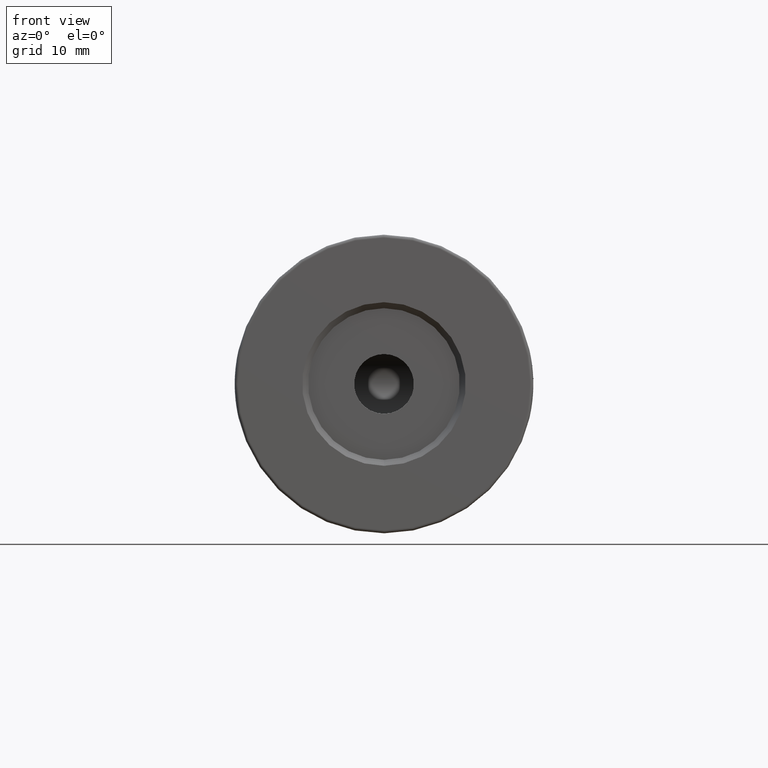
[diagram: clean part render]
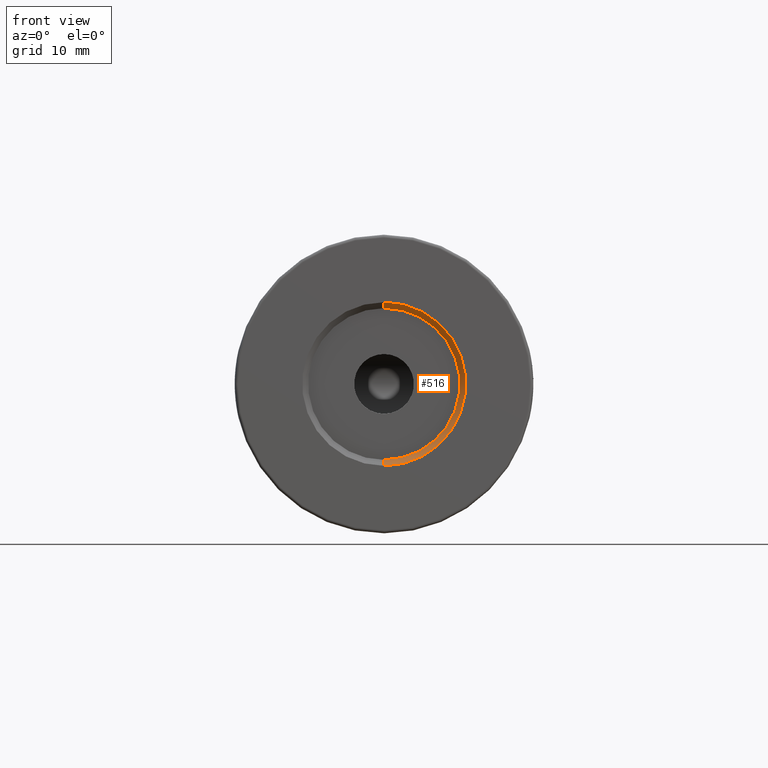
[diagram: same view with one face highlighted and labeled with its STEP entity id]
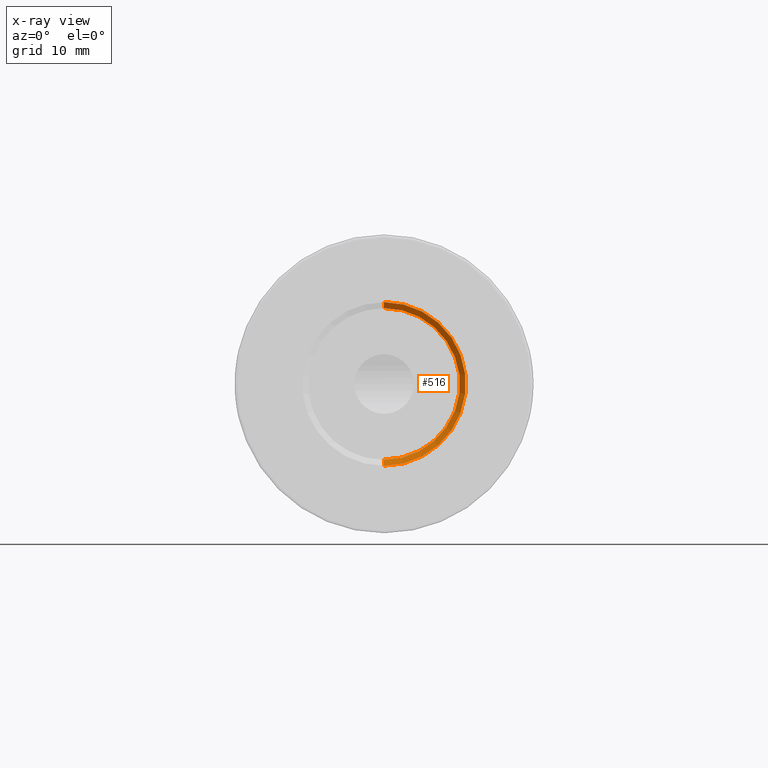
[diagram: x-ray of the same camera — body ghosted, the highlighted face saturated]
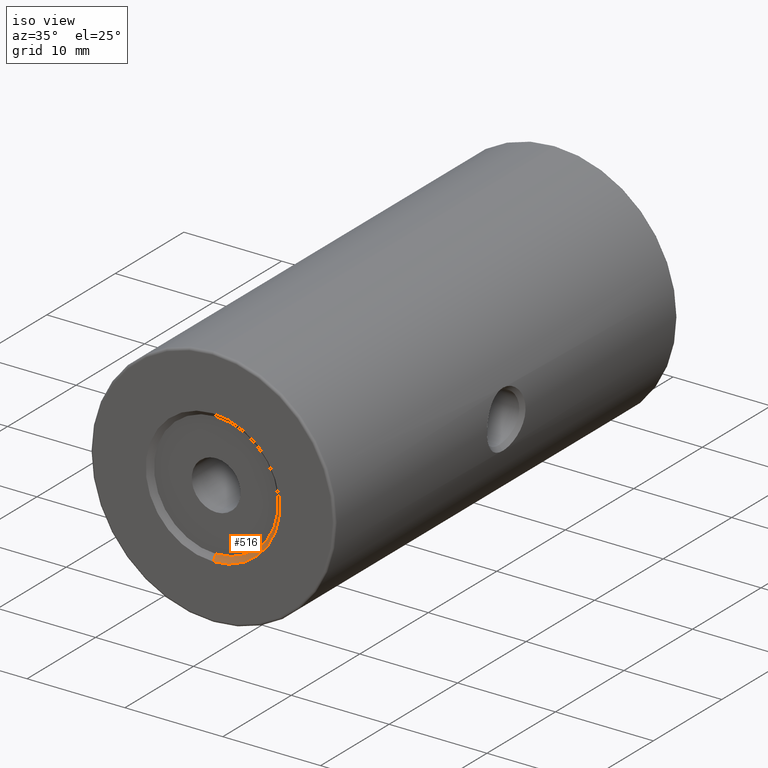
[diagram: same view with one face highlighted and labeled with its STEP entity id]
A machine part, front view. The second image highlights one B-rep face of the part: STEP entity #516.
The next image is the same camera in x-ray: the body ghosted, the highlighted face saturated — about 0% of this face is hidden behind the body in this view.
A second angle (iso view) of the same face is appended — the face is thin or edge-on in the first view.
In plain terms, the highlighted conical surface has half-angle 45 deg.
Its self-contained STEP definition (entity closure, byte-faithful):
#348 = DIRECTION ( 'NONE',  ( 8.659560562354950115E-17, -0.7071067811865463515, 0.7071067811865487940 ) ) ;
#401 = DIRECTION ( 'NONE',  ( 0.0000000000000000000, 0.0000000000000000000, 1.000000000000000000 ) ) ;
#417 = CARTESIAN_POINT ( 'NONE',  ( -22.50520183104453409, -23.60174781523060972, 50.00000000000000000 ) ) ;
#432 = AXIS2_PLACEMENT_3D ( 'NONE', #955, #3095, #1512 ) ;
#516 = ADVANCED_FACE ( 'NONE', ( #2134 ), #760, .F. ) ;
#566 = ORIENTED_EDGE ( 'NONE', *, *, #770, .F. ) ;
#599 = AXIS2_PLACEMENT_3D ( 'NONE', #1184, #2808, #2249 ) ;
#641 = DIRECTION ( 'NONE',  ( 0.0000000000000000000, 1.000000000000000000, 0.0000000000000000000 ) ) ;
#760 = CONICAL_SURFACE ( 'NONE', #599, 6.850000000000008527, 0.7853981633974500554 ) ;
#770 = EDGE_CURVE ( 'NONE', #1082, #3329, #1990, .T. ) ;
#955 = CARTESIAN_POINT ( 'NONE',  ( -22.50520183104453409, -23.10174781523060972, 50.00000000000000000 ) ) ;
#978 = VECTOR ( 'NONE', #1387, 1000.000000000000000 ) ;
#989 = CARTESIAN_POINT ( 'NONE',  ( -22.50520183104453409, -23.10174781523060972, 56.35000000000000142 ) ) ;
#1082 = VERTEX_POINT ( 'NONE', #989 ) ;
#1093 = AXIS2_PLACEMENT_3D ( 'NONE', #417, #641, #401 ) ;
#1120 = VERTEX_POINT ( 'NONE', #2292 ) ;
#1184 = CARTESIAN_POINT ( 'NONE',  ( -22.50520183104453409, -23.60174781523060972, 50.00000000000000000 ) ) ;
#1269 = EDGE_CURVE ( 'NONE', #1082, #1120, #1934, .T. ) ;
#1363 = ORIENTED_EDGE ( 'NONE', *, *, #3250, .T. ) ;
#1387 = DIRECTION ( 'NONE',  ( 0.0000000000000000000, -0.7071067811865463515, -0.7071067811865487940 ) ) ;
#1404 = CARTESIAN_POINT ( 'NONE',  ( -22.50520183104453409, -23.60174781523060972, 43.14999999999999147 ) ) ;
#1512 = DIRECTION ( 'NONE',  ( 0.0000000000000000000, 0.0000000000000000000, 1.000000000000000000 ) ) ;
#1591 = EDGE_LOOP ( 'NONE', ( #566, #2474, #1363, #2654 ) ) ;
#1647 = LINE ( 'NONE', #2714, #978 ) ;
#1821 = VECTOR ( 'NONE', #348, 1000.000000000000000 ) ;
#1934 = CIRCLE ( 'NONE', #432, 6.350000000000001421 ) ;
#1990 = LINE ( 'NONE', #2445, #1821 ) ;
#2134 = FACE_OUTER_BOUND ( 'NONE', #1591, .T. ) ;
#2235 = EDGE_CURVE ( 'NONE', #3329, #3256, #2378, .T. ) ;
#2249 = DIRECTION ( 'NONE',  ( 0.0000000000000000000, 0.0000000000000000000, -1.000000000000000000 ) ) ;
#2292 = CARTESIAN_POINT ( 'NONE',  ( -22.50520183104453409, -23.10174781523060972, 43.64999999999999858 ) ) ;
#2378 = CIRCLE ( 'NONE', #1093, 6.850000000000008527 ) ;
#2445 = CARTESIAN_POINT ( 'NONE',  ( -22.50520183104453409, -23.60174781523060972, 56.85000000000000853 ) ) ;
#2474 = ORIENTED_EDGE ( 'NONE', *, *, #1269, .T. ) ;
#2654 = ORIENTED_EDGE ( 'NONE', *, *, #2235, .F. ) ;
#2714 = CARTESIAN_POINT ( 'NONE',  ( -22.50520183104453409, -23.60174781523060972, 43.14999999999999147 ) ) ;
#2808 = DIRECTION ( 'NONE',  ( -0.0000000000000000000, -1.000000000000000000, -0.0000000000000000000 ) ) ;
#3095 = DIRECTION ( 'NONE',  ( -0.0000000000000000000, 1.000000000000000000, -0.0000000000000000000 ) ) ;
#3250 = EDGE_CURVE ( 'NONE', #1120, #3256, #1647, .T. ) ;
#3256 = VERTEX_POINT ( 'NONE', #1404 ) ;
#3329 = VERTEX_POINT ( 'NONE', #3365 ) ;
#3365 = CARTESIAN_POINT ( 'NONE',  ( -22.50520183104453409, -23.60174781523060972, 56.85000000000000853 ) ) ;